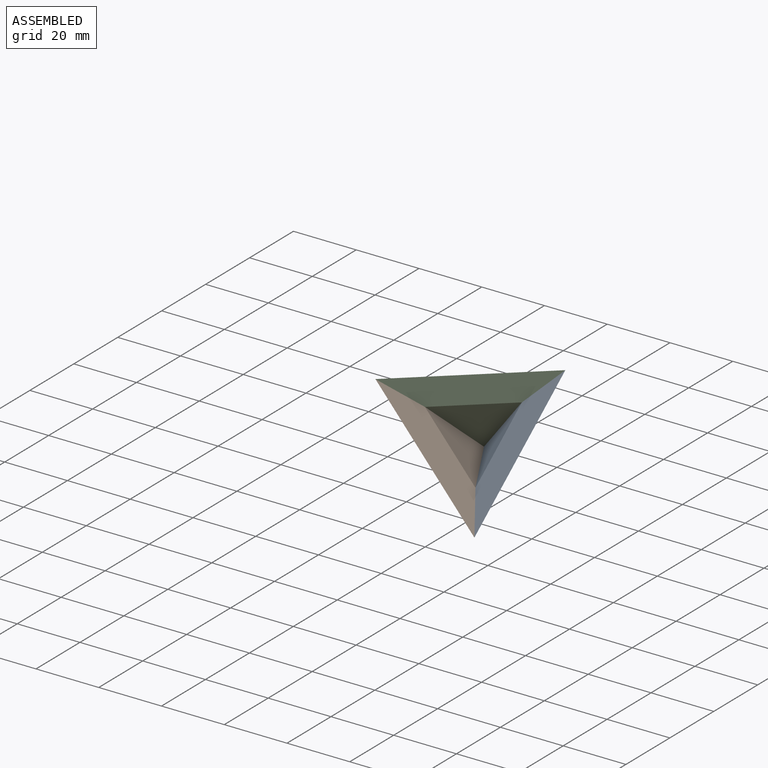
[diagram: assembled view]
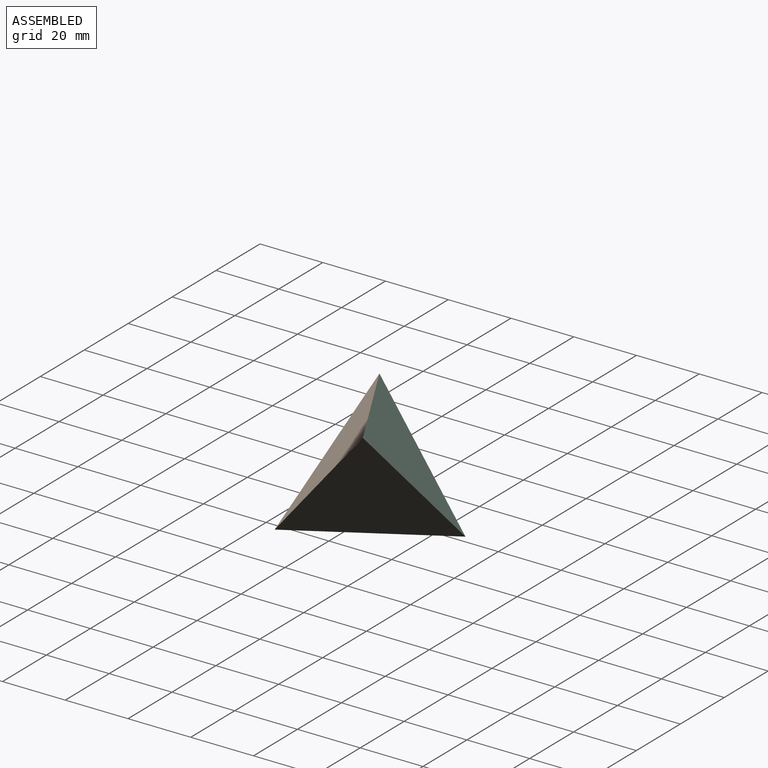
[diagram: assembled view, second angle]
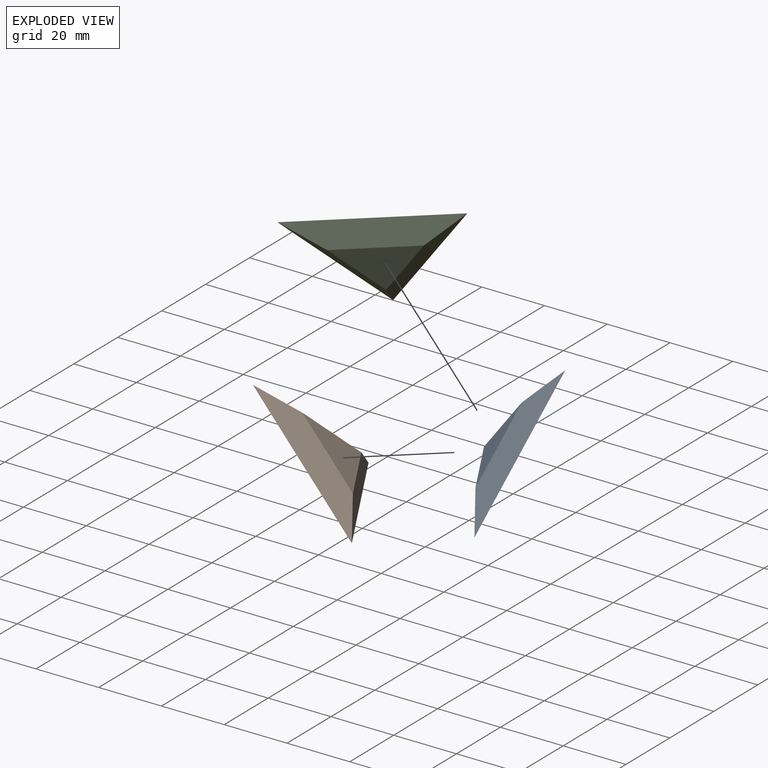
[diagram: exploded view]
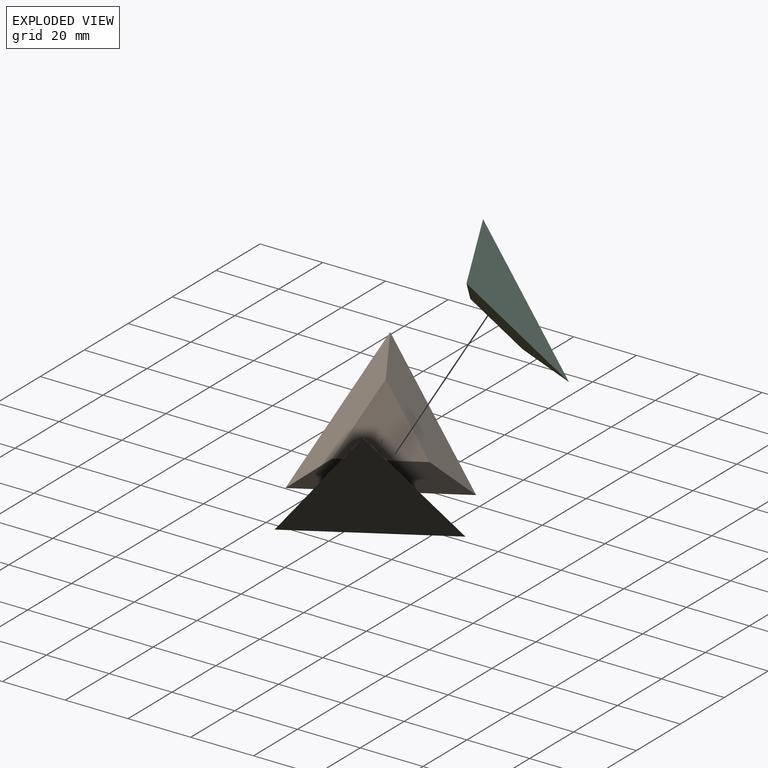
[diagram: exploded view, second angle]
ASSEMBLY  parts=3 mates=2
PART A: 5 faces, bbox 50x43.3x5 mm
  f0: plane 25.5x22.08mm, normal (0,0,1), area 281.6mm2, adj f2,f3,f4
  f1: plane 50x43.3mm, normal (0,0,-1), area 1082.5mm2, adj f2,f3,f4
  f2: plane 43.3x25mm, normal (0.5,0.29,0.82), area 327mm2, adj f0,f1,f3,f4
  f3: plane 43.3x25mm, normal (-0.5,0.29,0.82), area 327mm2, adj f0,f1,f2,f4
  f4: plane 50x7.07mm, normal (0,-0.58,0.82), area 327mm2, adj f0,f1,f2,f3
PART B: same geometry as A
PART C: same geometry as A
PLACE A rot(axis=(0,-0.76,0.65),82.8deg) t=(-7.59,1.04,28.97)mm
PLACE B rot(axis=(-0.5,0.87,0),49.5deg) t=(-21.97,-7.25,27.44)mm
PLACE C rot(axis=(-0.21,0.87,-0.44),161.8deg) t=(-19.88,3.57,39.94)mm
MATE fastened C.f3 <-> A.f2  axis (0.74,-0.15,-0.66) through (-11.71,9.95,34.97)mm
MATE fastened A.f3 <-> B.f2  axis (-0.86,-0.5,-0.09) through (-14.15,-2.74,20.31)mm
